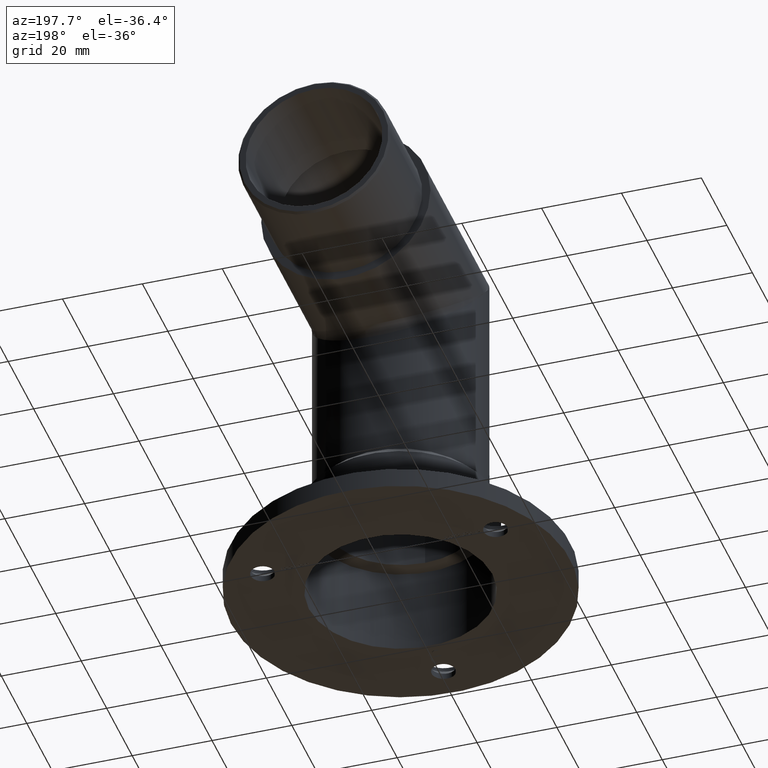
[diagram: clean part render]
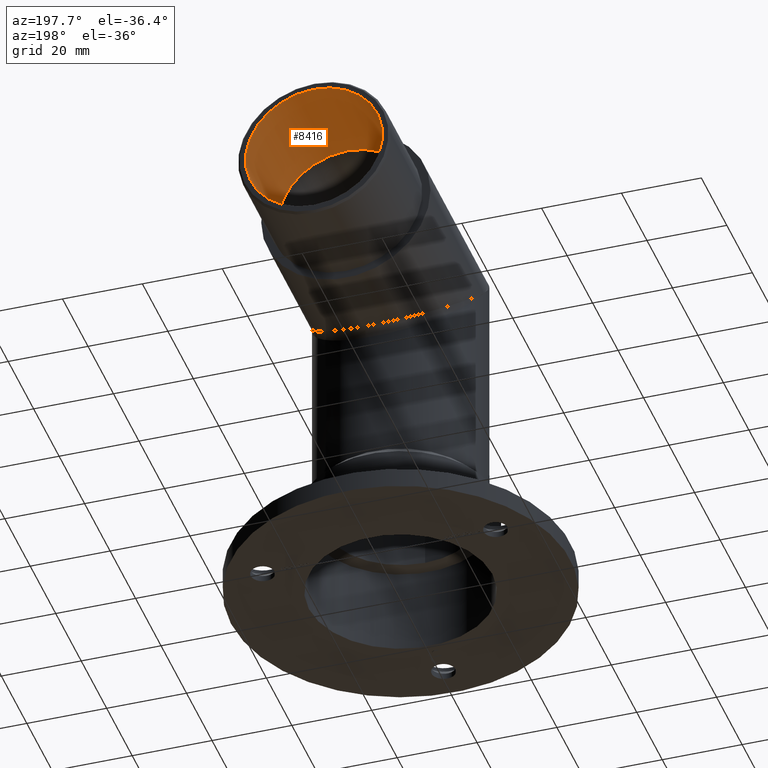
[diagram: same view with one face highlighted and labeled with its STEP entity id]
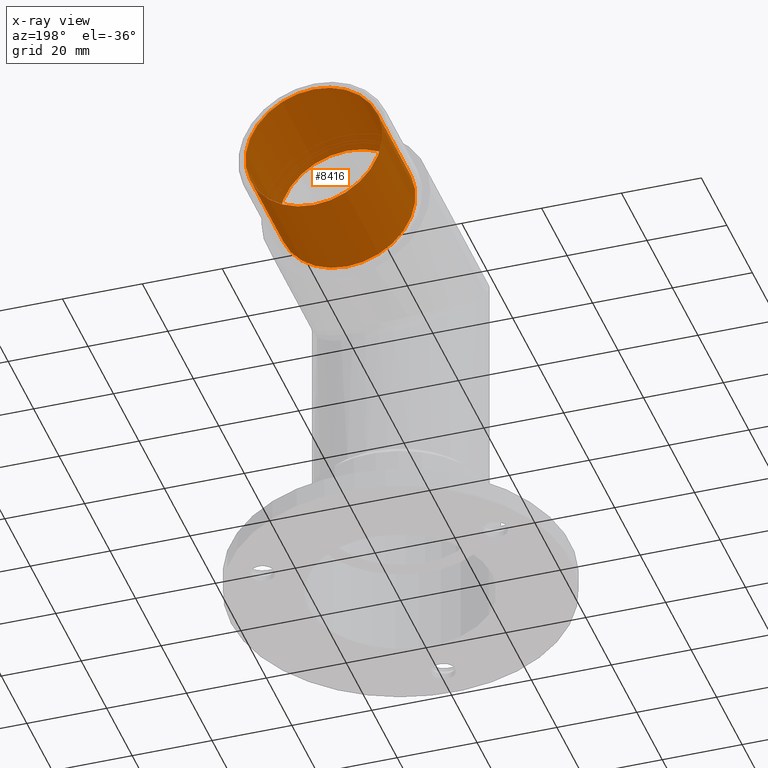
[diagram: x-ray of the same camera — body ghosted, the highlighted face saturated]
A machine part, auxiliary view. The second image highlights one B-rep face of the part: STEP entity #8416.
The next image is the same camera in x-ray: the body ghosted, the highlighted face saturated — about 0% of this face is hidden behind the body in this view.
In plain terms, the highlighted cylindrical surface (bore or boss wall) has radius 17.15 mm, axis along (0, 1, -0).
Its self-contained STEP definition (entity closure, byte-faithful):
#322 = CARTESIAN_POINT ( 'NONE',  ( 0.000000000000000000, 67.99999999999997158, 101.1500000000000057 ) ) ;
#405 = CYLINDRICAL_SURFACE ( 'NONE', #10274, 17.14999999999999858 ) ;
#414 = ORIENTED_EDGE ( 'NONE', *, *, #9980, .F. ) ;
#1189 = VERTEX_POINT ( 'NONE', #322 ) ;
#1575 = VERTEX_POINT ( 'NONE', #6577 ) ;
#3456 = AXIS2_PLACEMENT_3D ( 'NONE', #3477, #5956, #12342 ) ;
#3477 = CARTESIAN_POINT ( 'NONE',  ( 0.000000000000000000, 67.99999999999997158, 84.00000000000000000 ) ) ;
#4503 = AXIS2_PLACEMENT_3D ( 'NONE', #9812, #13513, #12110 ) ;
#5956 = DIRECTION ( 'NONE',  ( 0.000000000000000000, 1.000000000000000000, -1.608122649676636601E-16 ) ) ;
#6577 = CARTESIAN_POINT ( 'NONE',  ( 0.000000000000000000, 41.99999999999997868, 101.1500000000000057 ) ) ;
#7375 = EDGE_CURVE ( 'NONE', #1189, #1189, #7909, .T. ) ;
#7909 = CIRCLE ( 'NONE', #3456, 17.14999999999999858 ) ;
#8099 = EDGE_LOOP ( 'NONE', ( #414 ) ) ;
#8416 = ADVANCED_FACE ( 'NONE', ( #16095, #12698 ), #405, .F. ) ;
#9812 = CARTESIAN_POINT ( 'NONE',  ( 0.000000000000000000, 41.99999999999997868, 84.00000000000000000 ) ) ;
#9980 = EDGE_CURVE ( 'NONE', #1575, #1575, #12886, .T. ) ;
#10274 = AXIS2_PLACEMENT_3D ( 'NONE', #10746, #14599, #11959 ) ;
#10746 = CARTESIAN_POINT ( 'NONE',  ( 0.000000000000000000, 41.99999999999997868, 84.00000000000000000 ) ) ;
#11355 = ORIENTED_EDGE ( 'NONE', *, *, #7375, .T. ) ;
#11607 = EDGE_LOOP ( 'NONE', ( #11355 ) ) ;
#11959 = DIRECTION ( 'NONE',  ( 0.000000000000000000, 0.000000000000000000, 1.000000000000000000 ) ) ;
#12110 = DIRECTION ( 'NONE',  ( 0.000000000000000000, 0.000000000000000000, 1.000000000000000000 ) ) ;
#12342 = DIRECTION ( 'NONE',  ( 0.000000000000000000, 0.000000000000000000, 1.000000000000000000 ) ) ;
#12698 = FACE_OUTER_BOUND ( 'NONE', #11607, .T. ) ;
#12886 = CIRCLE ( 'NONE', #4503, 17.14999999999999858 ) ;
#13513 = DIRECTION ( 'NONE',  ( 0.000000000000000000, 1.000000000000000000, -1.608122649676636601E-16 ) ) ;
#14599 = DIRECTION ( 'NONE',  ( 0.000000000000000000, 1.000000000000000000, -1.608122649676636601E-16 ) ) ;
#16095 = FACE_OUTER_BOUND ( 'NONE', #8099, .T. ) ;